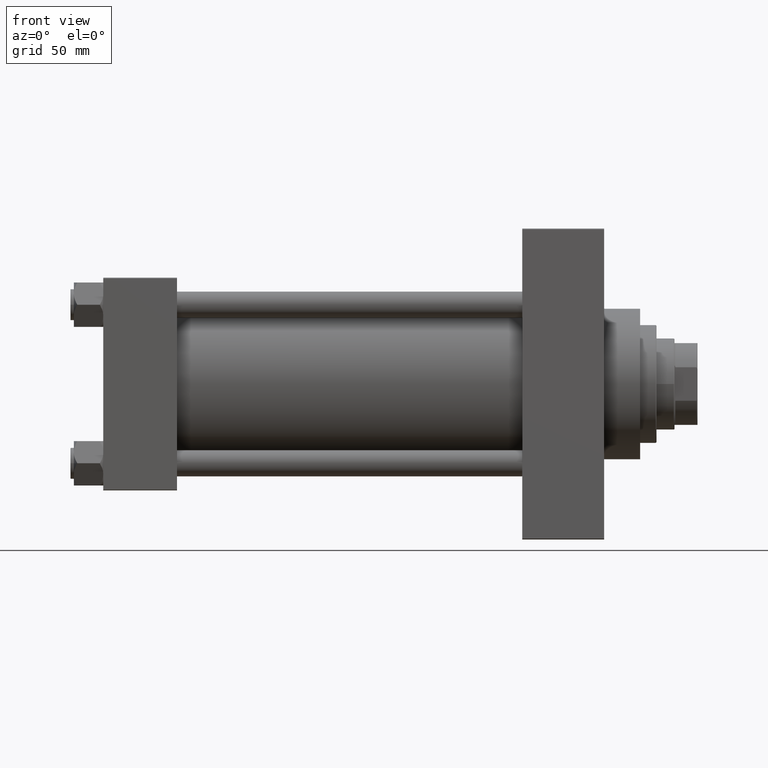
[diagram: clean part render]
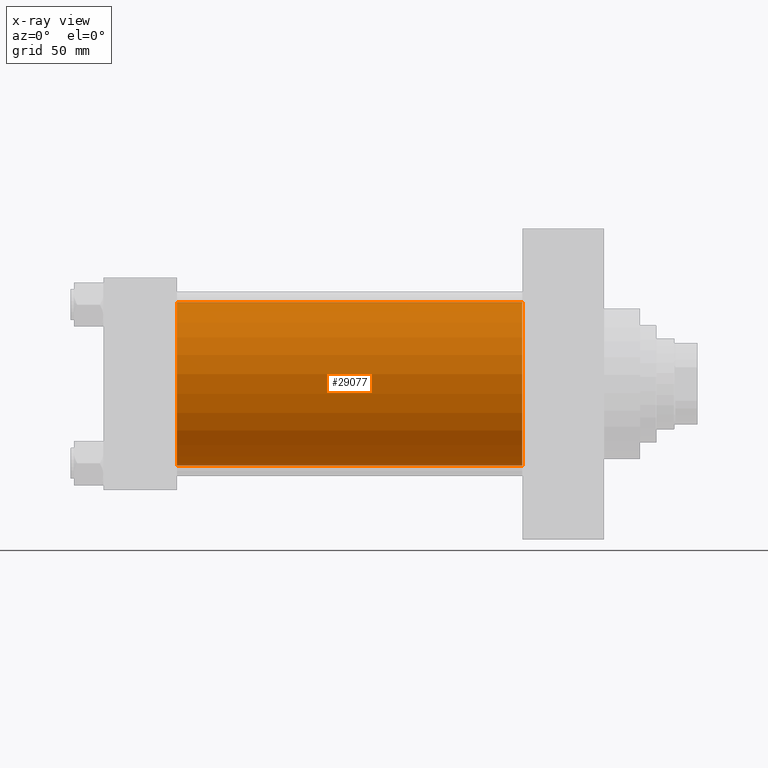
[diagram: x-ray — body ghosted, one internal face saturated and labeled with its STEP entity id]
A machine part, front view, then the same camera in x-ray: the body is ghosted and one INTERNAL B-rep face — a face not visible from any outside direction — is saturated and labeled: STEP entity #29077.
In plain terms, the highlighted cylindrical surface (partial cylindrical patch) has radius 50 mm, axis along (-1, -0, -0).
Its self-contained STEP definition (entity closure, byte-faithful):
#1814 = ORIENTED_EDGE ( 'NONE', *, *, #29641, .F. ) ;
#2081 = CARTESIAN_POINT ( 'NONE',  ( 45.00000000000000000, -2.602085213965210642E-15, 50.00000000000000000 ) ) ;
#2863 = CARTESIAN_POINT ( 'NONE',  ( 256.0000000000000000, -2.602085213965210642E-15, 50.00000000000000000 ) ) ;
#6380 = EDGE_LOOP ( 'NONE', ( #23322, #17827, #15106, #1814 ) ) ;
#7213 = LINE ( 'NONE', #2863, #40957 ) ;
#8895 = CARTESIAN_POINT ( 'NONE',  ( 256.0000000000000000, 3.521148781771555838E-15, -50.00000000000000000 ) ) ;
#11313 = EDGE_CURVE ( 'NONE', #13496, #28189, #22489, .T. ) ;
#12314 = CARTESIAN_POINT ( 'NONE',  ( 45.00000000000000000, 3.521148781771555838E-15, -50.00000000000000000 ) ) ;
#13496 = VERTEX_POINT ( 'NONE', #8895 ) ;
#13846 = DIRECTION ( 'NONE',  ( -1.000000000000000000, -0.000000000000000000, -0.000000000000000000 ) ) ;
#14523 = CARTESIAN_POINT ( 'NONE',  ( 256.0000000000000000, 3.521148781771555838E-15, -50.00000000000000000 ) ) ;
#15106 = ORIENTED_EDGE ( 'NONE', *, *, #20169, .F. ) ;
#15611 = VERTEX_POINT ( 'NONE', #2081 ) ;
#17827 = ORIENTED_EDGE ( 'NONE', *, *, #11313, .T. ) ;
#20169 = EDGE_CURVE ( 'NONE', #15611, #28189, #32940, .T. ) ;
#20581 = AXIS2_PLACEMENT_3D ( 'NONE', #40002, #28182, #21643 ) ;
#20872 = VERTEX_POINT ( 'NONE', #36698 ) ;
#21105 = DIRECTION ( 'NONE',  ( 0.000000000000000000, 0.000000000000000000, 1.000000000000000000 ) ) ;
#21643 = DIRECTION ( 'NONE',  ( 0.000000000000000000, 0.000000000000000000, -1.000000000000000000 ) ) ;
#21735 = AXIS2_PLACEMENT_3D ( 'NONE', #25713, #39951, #35846 ) ;
#21941 = DIRECTION ( 'NONE',  ( -1.000000000000000000, -0.000000000000000000, -0.000000000000000000 ) ) ;
#22489 = LINE ( 'NONE', #14523, #36561 ) ;
#23322 = ORIENTED_EDGE ( 'NONE', *, *, #31050, .T. ) ;
#25713 = CARTESIAN_POINT ( 'NONE',  ( 256.0000000000000000, -2.602085213965210642E-15, 0.000000000000000000 ) ) ;
#28182 = DIRECTION ( 'NONE',  ( 1.000000000000000000, 0.000000000000000000, 0.000000000000000000 ) ) ;
#28189 = VERTEX_POINT ( 'NONE', #12314 ) ;
#29077 = ADVANCED_FACE ( 'NONE', ( #46456 ), #46190, .F. ) ;
#29641 = EDGE_CURVE ( 'NONE', #20872, #15611, #7213, .T. ) ;
#31050 = EDGE_CURVE ( 'NONE', #20872, #13496, #32522, .T. ) ;
#32522 = CIRCLE ( 'NONE', #21735, 50.00000000000000000 ) ;
#32940 = CIRCLE ( 'NONE', #20581, 50.00000000000000000 ) ;
#35334 = CARTESIAN_POINT ( 'NONE',  ( 256.0000000000000000, -2.602085213965210642E-15, 0.000000000000000000 ) ) ;
#35846 = DIRECTION ( 'NONE',  ( 0.000000000000000000, 0.000000000000000000, -1.000000000000000000 ) ) ;
#36263 = DIRECTION ( 'NONE',  ( -1.000000000000000000, -0.000000000000000000, -0.000000000000000000 ) ) ;
#36561 = VECTOR ( 'NONE', #36263, 1000.000000000000000 ) ;
#36698 = CARTESIAN_POINT ( 'NONE',  ( 256.0000000000000000, -2.602085213965210642E-15, 50.00000000000000000 ) ) ;
#39951 = DIRECTION ( 'NONE',  ( 1.000000000000000000, 0.000000000000000000, 0.000000000000000000 ) ) ;
#40002 = CARTESIAN_POINT ( 'NONE',  ( 45.00000000000000000, -2.602085213965210642E-15, 0.000000000000000000 ) ) ;
#40957 = VECTOR ( 'NONE', #21941, 1000.000000000000000 ) ;
#43983 = AXIS2_PLACEMENT_3D ( 'NONE', #35334, #13846, #21105 ) ;
#46190 = CYLINDRICAL_SURFACE ( 'NONE', #43983, 50.00000000000000000 ) ;
#46456 = FACE_OUTER_BOUND ( 'NONE', #6380, .T. ) ;